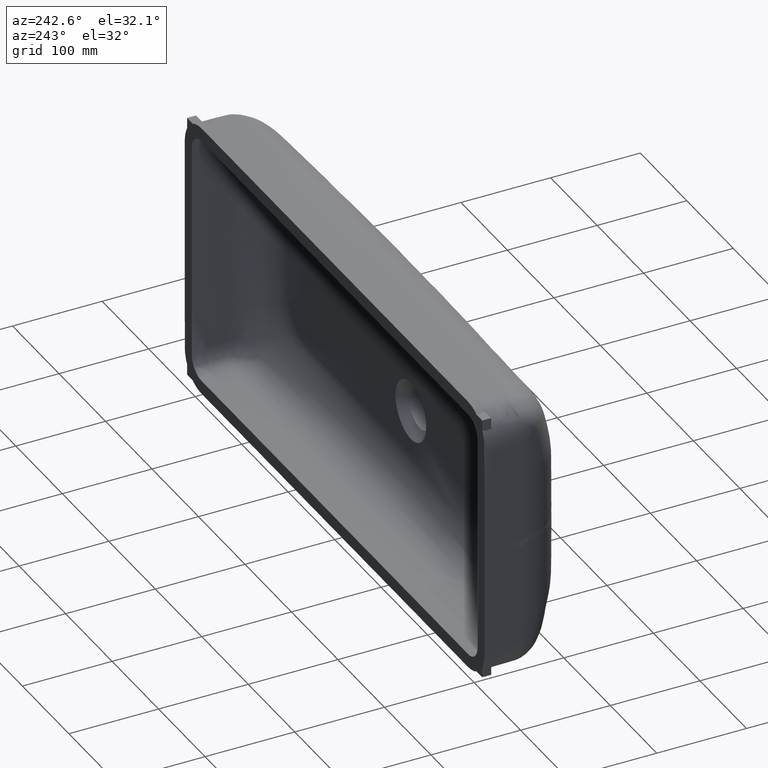
[diagram: clean part render]
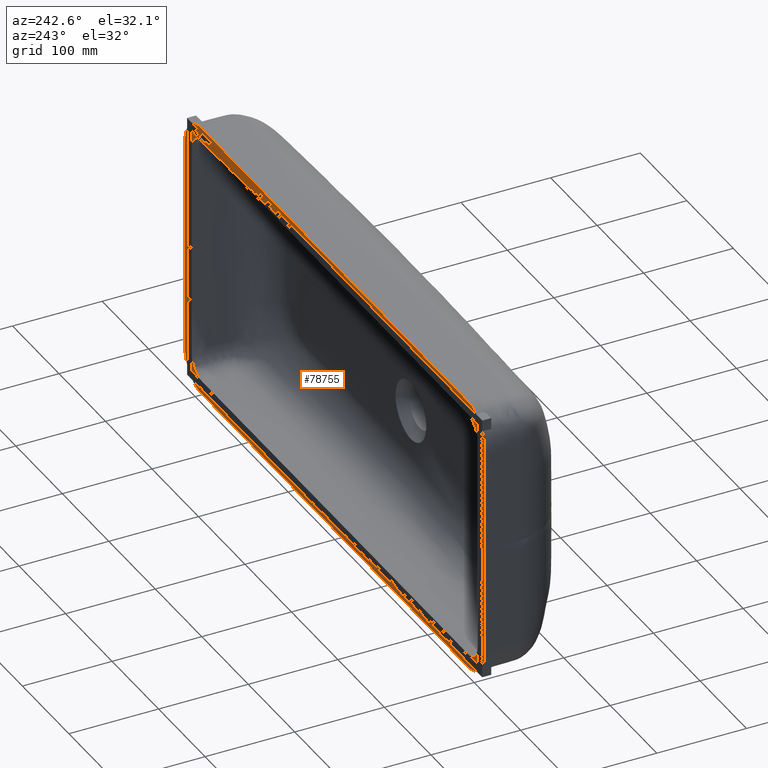
[diagram: same view with one face highlighted and labeled with its STEP entity id]
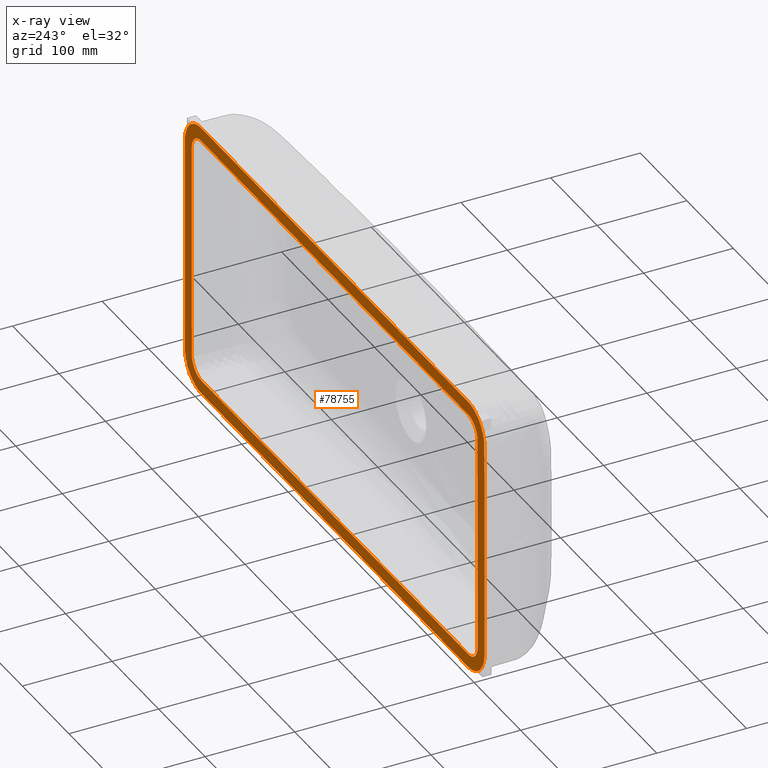
[diagram: x-ray of the same camera — body ghosted, the highlighted face saturated]
A machine part, auxiliary view. The second image highlights one B-rep face of the part: STEP entity #78755.
The next image is the same camera in x-ray: the body ghosted, the highlighted face saturated — about 0% of this face is hidden behind the body in this view.
In plain terms, the highlighted planar face has unit normal (0, 1, -0).
Its self-contained STEP definition (entity closure, byte-faithful):
#1538 = CARTESIAN_POINT ( 'NONE',  ( -322.5091960071179100, -3.409203776552731800E-013, -121.0281627364059200 ) ) ;
#2301 = CARTESIAN_POINT ( 'NONE',  ( -314.2696964731727600, 2.231971605445429100E-013, -142.5740307254259800 ) ) ;
#3060 = CARTESIAN_POINT ( 'NONE',  ( -292.0228288718980700, 4.789489002066422600E-014, -154.7163876846789500 ) ) ;
#3818 = CARTESIAN_POINT ( 'NONE',  ( -153.5004031492442500, -2.202894599875263300E-014, -155.0067545041486300 ) ) ;
#4575 = CARTESIAN_POINT ( 'NONE',  ( 286.6684892410783000, 1.556841785765189300E-013, -155.0012643278636500 ) ) ;
#5337 = CARTESIAN_POINT ( 'NONE',  ( 308.7587092037516600, 2.276577377812510700E-013, -147.8221930468014900 ) ) ;
#6094 = CARTESIAN_POINT ( 'NONE',  ( 321.2397113850350400, -1.958987989733089300E-013, -129.4149088517008900 ) ) ;
#6854 = CARTESIAN_POINT ( 'NONE',  ( 322.5187463859667200, 4.419576330240098000E-013, -77.43224396367611500 ) ) ;
#8374 = CARTESIAN_POINT ( 'NONE',  ( 320.5191722098404600, 8.396026179031676400E-014, 131.7379910105558500 ) ) ;
#9118 = CARTESIAN_POINT ( 'NONE',  ( 309.4871919114694900, 2.249055878741077600E-013, 147.2695408648443200 ) ) ;
#9385 = CARTESIAN_POINT ( 'NONE',  ( -307.5000000000000000, 0.0000000000000000000, -106.1358856637156700 ) ) ;
#9881 = CARTESIAN_POINT ( 'NONE',  ( 287.7682587020204900, 7.261101029649298000E-014, 155.0054457408384400 ) ) ;
#10151 = CARTESIAN_POINT ( 'NONE',  ( 290.4682706410208100, 0.0000000000000000000, -139.8337611195951800 ) ) ;
#10638 = CARTESIAN_POINT ( 'NONE',  ( -78.29070187609428900, -1.256383549244291800E-013, 155.0137057078182500 ) ) ;
#11405 = CARTESIAN_POINT ( 'NONE',  ( -289.9654413472586600, 8.750581991243745500E-014, 154.9209087731526900 ) ) ;
#11672 = CARTESIAN_POINT ( 'NONE',  ( 322.5186414504132100, -6.505213034913055200E-016, 1.201936346521925100E-013 ) ) ;
#12166 = CARTESIAN_POINT ( 'NONE',  ( -313.5723244114672600, 1.184679633220841300E-013, 143.3974179283978000 ) ) ;
#12928 = CARTESIAN_POINT ( 'NONE',  ( -322.4219314735395900, 2.818785201908571000E-013, 122.8788700430679900 ) ) ;
#15244 = ORIENTED_EDGE ( 'NONE', *, *, #38508, .T. ) ;
#17275 = CARTESIAN_POINT ( 'NONE',  ( 0.0000000000000000000, 0.0000000000000000000, 0.0000000000000000000 ) ) ;
#19317 = CARTESIAN_POINT ( 'NONE',  ( -322.4095592902771200, -3.115154133610045900E-013, -122.8453931305593700 ) ) ;
#20076 = CARTESIAN_POINT ( 'NONE',  ( -311.8390782156498100, 1.580536533954778900E-013, -145.2812469567373900 ) ) ;
#20585 = EDGE_LOOP ( 'NONE', ( #111275, #59402 ) ) ;
#20764 = FACE_OUTER_BOUND ( 'NONE', #20585, .T. ) ;
#20837 = CARTESIAN_POINT ( 'NONE',  ( -289.0290378285064300, -2.083216906065723400E-013, -154.9889351421387300 ) ) ;
#21595 = CARTESIAN_POINT ( 'NONE',  ( -38.36085696195139900, 5.740112850203091500E-013, -155.0186429556822800 ) ) ;
#22356 = CARTESIAN_POINT ( 'NONE',  ( 287.5681074468723200, 2.811529081541229000E-013, -155.0024666569818000 ) ) ;
#23123 = CARTESIAN_POINT ( 'NONE',  ( 310.1981383955924800, 1.205690667287589100E-013, -146.6610741707001800 ) ) ;
#23159 = CARTESIAN_POINT ( 'NONE',  ( -307.5000000000000000, 0.0000000000000000000, -7.589415207398531000E-014 ) ) ;
#23368 = CARTESIAN_POINT ( 'NONE',  ( -307.5000000000000000, 0.0000000000000000000, 3.920382849557266800 ) ) ;
#23610 = CARTESIAN_POINT ( 'NONE',  ( -307.5000000000000000, 0.0000000000000000000, 9.147559982300387900 ) ) ;
#23637 = CARTESIAN_POINT ( 'NONE',  ( -307.5000000000000000, 0.0000000000000000000, 35.28344564601605500 ) ) ;
#23878 = CARTESIAN_POINT ( 'NONE',  ( 321.6892572803942600, -1.859948725447090400E-014, -127.6208606907753300 ) ) ;
#24125 = CARTESIAN_POINT ( 'NONE',  ( -307.5000000000000000, 0.0000000000000000000, 57.49894846017436800 ) ) ;
#24370 = CARTESIAN_POINT ( 'NONE',  ( -307.5000000000000000, 0.0000000000000000000, 92.27177132743125300 ) ) ;
#24640 = CARTESIAN_POINT ( 'NONE',  ( 322.5186712731971900, -2.381232789493003500E-013, -33.87660673412686700 ) ) ;
#24678 = CARTESIAN_POINT ( 'NONE',  ( -307.4999999999999400, 0.0000000000000000000, 106.1358856637155700 ) ) ;
#25164 = CARTESIAN_POINT ( 'NONE',  ( -307.5000000000000600, 0.0000000000000000000, 121.2131417307904300 ) ) ;
#25443 = CARTESIAN_POINT ( 'NONE',  ( -307.3917546935302900, 0.0000000000000000000, 122.4012009157070200 ) ) ;
#26166 = CARTESIAN_POINT ( 'NONE',  ( 319.3693668984720400, 6.151480753034367100E-014, 134.5322540670361200 ) ) ;
#26198 = CARTESIAN_POINT ( 'NONE',  ( -306.0631782548153400, 0.0000000000000000000, 129.7942784449086800 ) ) ;
#26675 = CARTESIAN_POINT ( 'NONE',  ( -302.0441262972485100, 0.0000000000000000000, 135.0328629550516300 ) ) ;
#26915 = CARTESIAN_POINT ( 'NONE',  ( 306.5768500133155500, -9.430548335644277700E-014, 149.3797265762164800 ) ) ;
#26947 = CARTESIAN_POINT ( 'NONE',  ( -295.1027707429660200, 0.0000000000000000000, 138.5757673255014900 ) ) ;
#27179 = CARTESIAN_POINT ( 'NONE',  ( -307.3917546935302300, 0.0000000000000000000, -122.4012009157070700 ) ) ;
#27403 = CARTESIAN_POINT ( 'NONE',  ( -191.6666666666655200, 0.0000000000000000000, 139.9999999999990600 ) ) ;
#27428 = CARTESIAN_POINT ( 'NONE',  ( 3.858025010572419000E-012, 0.0000000000000000000, 139.9999999999998600 ) ) ;
#27667 = CARTESIAN_POINT ( 'NONE',  ( 285.9590440262273300, 2.475416827726167100E-014, 155.0012787429855300 ) ) ;
#27929 = CARTESIAN_POINT ( 'NONE',  ( 295.1027707429659000, 0.0000000000000000000, -138.5757673255015400 ) ) ;
#28175 = CARTESIAN_POINT ( 'NONE',  ( 191.6666666666693300, 0.0000000000000000000, 140.0000000000008000 ) ) ;
#28416 = CARTESIAN_POINT ( 'NONE',  ( -194.0786993927939600, -1.421451099677312400E-013, 155.0041791539987900 ) ) ;
#28937 = CARTESIAN_POINT ( 'NONE',  ( 289.0033957137771900, 0.0000000000000000000, 140.0000000000000000 ) ) ;
#29194 = CARTESIAN_POINT ( 'NONE',  ( -295.2968185187680200, 1.943791548828391200E-013, 154.2119771163742100 ) ) ;
#29227 = CARTESIAN_POINT ( 'NONE',  ( 290.4682706410208700, 0.0000000000000000000, 139.8337611195951200 ) ) ;
#29688 = CARTESIAN_POINT ( 'NONE',  ( 293.5283965657413900, 0.0000000000000000000, 139.1494311185424500 ) ) ;
#29714 = CARTESIAN_POINT ( 'NONE',  ( 295.1027707429668700, 0.0000000000000000000, 138.5757673255011500 ) ) ;
#29956 = CARTESIAN_POINT ( 'NONE',  ( -315.8216414632565800, 1.062912056943268300E-013, 140.6225886400017400 ) ) ;
#29957 = CARTESIAN_POINT ( 'NONE',  ( 302.0441262972489700, 0.0000000000000000000, 135.0328629550509400 ) ) ;
#29989 = CARTESIAN_POINT ( 'NONE',  ( 306.0631782548158000, 0.0000000000000000000, 129.7942784449080900 ) ) ;
#30476 = CARTESIAN_POINT ( 'NONE',  ( 307.3917546935301700, 0.0000000000000000000, 122.4012009157068100 ) ) ;
#30719 = CARTESIAN_POINT ( 'NONE',  ( -322.5187065817177100, 5.066114926278885100E-014, 120.4938850476042400 ) ) ;
#30720 = CARTESIAN_POINT ( 'NONE',  ( 307.4999999999998900, 0.0000000000000000000, 121.2131417307903400 ) ) ;
#30751 = CARTESIAN_POINT ( 'NONE',  ( 307.4999999999998300, 0.0000000000000000000, 106.1358856637153100 ) ) ;
#31236 = CARTESIAN_POINT ( 'NONE',  ( 307.4999999999998300, 0.0000000000000000000, 92.27177132743064200 ) ) ;
#31513 = CARTESIAN_POINT ( 'NONE',  ( 307.5000000000003400, 0.0000000000000000000, 1.224699823917574900E-013 ) ) ;
#32285 = CARTESIAN_POINT ( 'NONE',  ( 307.5000000000003400, 0.0000000000000000000, 26.13588566371539600 ) ) ;
#32766 = CARTESIAN_POINT ( 'NONE',  ( 307.5000000000002300, 0.0000000000000000000, 52.27177132743068500 ) ) ;
#35074 = DIRECTION ( 'NONE',  ( -1.000000000000000000, 0.0000000000000000000, -2.468102506471067100E-016 ) ) ;
#37094 = CARTESIAN_POINT ( 'NONE',  ( -322.0100615758762500, -5.477821039880404000E-013, -126.4370708981556200 ) ) ;
#37854 = CARTESIAN_POINT ( 'NONE',  ( -307.1358574735813800, -1.031157695337881600E-013, -149.0088905659640900 ) ) ;
#38508 = EDGE_CURVE ( 'NONE', #150046, #54996, #191117, .T. ) ;
#38622 = CARTESIAN_POINT ( 'NONE',  ( -287.2301910800298400, -2.223339612962976500E-014, -155.0012529732052800 ) ) ;
#39379 = CARTESIAN_POINT ( 'NONE',  ( 76.77868927972626500, -2.314978297751284700E-013, -155.0138693792222600 ) ) ;
#40139 = CARTESIAN_POINT ( 'NONE',  ( 292.6437793970428600, 1.373779251228249200E-013, -154.7096282094102300 ) ) ;
#40898 = CARTESIAN_POINT ( 'NONE',  ( 312.0162770689471500, -2.224453645859774800E-014, -145.0226878069372000 ) ) ;
#41647 = CARTESIAN_POINT ( 'NONE',  ( 322.2377036519894800, 4.995189545244586100E-013, -124.6102825755086100 ) ) ;
#42408 = CARTESIAN_POINT ( 'NONE',  ( 322.5186436211129700, -1.222451391520327600E-013, -8.469151683537735000 ) ) ;
#43179 = CARTESIAN_POINT ( 'NONE',  ( 322.5188214729575400, 1.127124910951044400E-014, 77.51929009655353300 ) ) ;
#43926 = CARTESIAN_POINT ( 'NONE',  ( 318.5712884306667000, -4.637391347083505600E-013, 136.1649195548577000 ) ) ;
#44671 = CARTESIAN_POINT ( 'NONE',  ( 304.5046016106694000, 6.066525386048866600E-014, 150.6085938559005500 ) ) ;
#44935 = CARTESIAN_POINT ( 'NONE',  ( -302.0441262972486200, 0.0000000000000000000, -135.0328629550515100 ) ) ;
#45427 = CARTESIAN_POINT ( 'NONE',  ( 279.9284186655829100, -2.799540647917016200E-013, 155.0014052314761600 ) ) ;
#45696 = CARTESIAN_POINT ( 'NONE',  ( 306.0631782548155700, 0.0000000000000000000, -129.7942784449086000 ) ) ;
#46190 = CARTESIAN_POINT ( 'NONE',  ( -256.7971982271550900, -1.294599678359599900E-013, 155.0019613967033100 ) ) ;
#46955 = CARTESIAN_POINT ( 'NONE',  ( -299.8578230493944300, 1.865467391184586000E-013, 152.7785390722364700 ) ) ;
#47715 = CARTESIAN_POINT ( 'NONE',  ( -317.7860432971824000, -8.590098525569138800E-014, 137.6193321030520500 ) ) ;
#48479 = CARTESIAN_POINT ( 'NONE',  ( -322.5187157708430200, 2.868367183448064200E-014, 117.5113632463928500 ) ) ;
#54872 = CARTESIAN_POINT ( 'NONE',  ( -320.3440626476368600, 2.488153312474531000E-013, -132.2196838470491400 ) ) ;
#54996 = VERTEX_POINT ( 'NONE', #83894 ) ;
#55634 = CARTESIAN_POINT ( 'NONE',  ( -304.0191292481290500, -2.374547176280914700E-013, -150.8914360587024200 ) ) ;
#56305 = ORIENTED_EDGE ( 'NONE', *, *, #84798, .T. ) ;
#56399 = CARTESIAN_POINT ( 'NONE',  ( -285.7309780329598500, -9.456323799715434600E-014, -155.0012833811360300 ) ) ;
#57157 = CARTESIAN_POINT ( 'NONE',  ( 191.9182356812613400, 1.383232997886499500E-013, -155.0042940648141300 ) ) ;
#57923 = CARTESIAN_POINT ( 'NONE',  ( 297.3602557886147200, -7.214109980649844000E-014, -153.6143793714765000 ) ) ;
#58684 = CARTESIAN_POINT ( 'NONE',  ( 314.4905171649566600, -1.398384681348519600E-013, -142.3348452800290700 ) ) ;
#59402 = ORIENTED_EDGE ( 'NONE', *, *, #129474, .F. ) ;
#59435 = CARTESIAN_POINT ( 'NONE',  ( 322.4559674398631200, -3.509052405244298000E-014, -122.1961438190903500 ) ) ;
#60191 = CARTESIAN_POINT ( 'NONE',  ( 322.5186415909491300, -1.900714312586599300E-016, -2.117287920884809000 ) ) ;
#60957 = CARTESIAN_POINT ( 'NONE',  ( 322.5187122485422700, -8.637205042053988000E-014, 118.7014122891575700 ) ) ;
#61711 = CARTESIAN_POINT ( 'NONE',  ( 316.8074830924877000, 2.068240287536059200E-014, 139.3122596838200900 ) ) ;
#62457 = CARTESIAN_POINT ( 'NONE',  ( 302.8910780895412800, -9.982397504017594900E-014, 151.4511465504165500 ) ) ;
#62724 = CARTESIAN_POINT ( 'NONE',  ( -293.5283965657408200, 0.0000000000000000000, -139.1494311185426200 ) ) ;
#63211 = CARTESIAN_POINT ( 'NONE',  ( 254.5997926747789400, -6.165581241999364900E-013, 155.0020239962755100 ) ) ;
#63477 = CARTESIAN_POINT ( 'NONE',  ( 307.4999999999998900, 0.0000000000000000000, -121.2131417307903100 ) ) ;
#63967 = CARTESIAN_POINT ( 'NONE',  ( -282.1258230115300900, 7.899139604826709300E-014, 155.0013576944790800 ) ) ;
#64747 = CARTESIAN_POINT ( 'NONE',  ( -303.1657944110866100, -3.141378040146831300E-014, 151.3320671438696600 ) ) ;
#65512 = CARTESIAN_POINT ( 'NONE',  ( -319.9726119441522800, 1.873321437802695900E-014, 133.3357757288933700 ) ) ;
#65788 = CARTESIAN_POINT ( 'NONE',  ( -322.5186414504128700, -1.847900755251787900E-031, -7.703124338932417300E-014 ) ) ;
#66280 = CARTESIAN_POINT ( 'NONE',  ( -322.5186414504129300, 5.653308937070333600E-015, 38.17628064861842300 ) ) ;
#68231 = VERTEX_POINT ( 'NONE', #207410 ) ;
#71884 = CARTESIAN_POINT ( 'NONE',  ( -322.5187159907689000, -1.673529238475701900E-014, -117.3790812232441300 ) ) ;
#72651 = CARTESIAN_POINT ( 'NONE',  ( -318.8987192348777700, 5.575751615954136500E-013, -135.5560656390123000 ) ) ;
#73408 = CARTESIAN_POINT ( 'NONE',  ( -299.6552187265913300, 1.195026271989272300E-013, -152.9200917952148300 ) ) ;
#74169 = CARTESIAN_POINT ( 'NONE',  ( -279.4342833204295900, -5.176866964600916800E-013, -155.0014161009780500 ) ) ;
#74929 = CARTESIAN_POINT ( 'NONE',  ( 254.2854901564570600, 1.264309805820317000E-013, -155.0020333415717500 ) ) ;
#75690 = CARTESIAN_POINT ( 'NONE',  ( 299.6964383317487700, -9.249133937940357100E-014, -152.8223908136164100 ) ) ;
#76448 = CARTESIAN_POINT ( 'NONE',  ( 316.6825552661983400, -3.841398085332207500E-013, -139.3901295726442100 ) ) ;
#77211 = CARTESIAN_POINT ( 'NONE',  ( 322.5064019288526500, -2.015031060571014300E-014, -120.9875633656492100 ) ) ;
#77962 = CARTESIAN_POINT ( 'NONE',  ( 322.5186414592731700, 7.588059114555839400E-013, -0.5293219802215056700 ) ) ;
#78732 = CARTESIAN_POINT ( 'NONE',  ( 322.5062794887360800, -5.519053521720313200E-014, 121.1238148498856900 ) ) ;
#78755 = ADVANCED_FACE ( 'NONE', ( #20764, #145573 ), #123094, .T. ) ;
#79486 = CARTESIAN_POINT ( 'NONE',  ( 313.4274572443679300, 4.246818703327188000E-014, 143.5351282473976900 ) ) ;
#80240 = CARTESIAN_POINT ( 'NONE',  ( 297.8877581683867700, 4.626647899924952200E-013, 153.5190644139875900 ) ) ;
#80504 = CARTESIAN_POINT ( 'NONE',  ( -289.0033957137770800, 0.0000000000000000000, -140.0000000000000000 ) ) ;
#80990 = CARTESIAN_POINT ( 'NONE',  ( 191.8812935079516300, 2.105442083431198600E-014, 155.0042928010307400 ) ) ;
#81262 = CARTESIAN_POINT ( 'NONE',  ( 307.4999999999998300, 0.0000000000000000000, -92.27177132743166500 ) ) ;
#81748 = CARTESIAN_POINT ( 'NONE',  ( -287.2518542329514200, -2.667200353405818200E-013, 155.0012525366550400 ) ) ;
#82512 = CARTESIAN_POINT ( 'NONE',  ( -308.2776583391271300, 7.724149921454777700E-015, 148.2787994527272100 ) ) ;
#83271 = CARTESIAN_POINT ( 'NONE',  ( -321.5517655162036600, -1.272517938119700500E-013, 128.2129145409735100 ) ) ;
#83894 = CARTESIAN_POINT ( 'NONE',  ( -307.5000000000000000, 0.0000000000000000000, -7.589415207398531000E-014 ) ) ;
#84798 = EDGE_CURVE ( 'NONE', #54996, #150046, #209884, .T. ) ;
#88201 = B_SPLINE_CURVE_WITH_KNOTS ( 'NONE', 3,
 ( #131214, #149003, #43179, #166755, #60957, #184489, #78732, #202239, #96479, #220012, #114216, #8374, #131971, #26166, #149757, #43926, #167509, #61711, #185236, #79486, #202997, #97227, #220759, #114970, #9118, #132726, #26915, #150513, #44671, #168251, #62457, #185985, #80240, #203744, #97977, #221509, #115722, #9881, #133486, #27667, #151273, #45427, #169007, #63211, #186752, #80990, #204495, #98730, #222265, #116474, #10638, #134242, #28416, #152024, #46190, #169765, #63967, #187512, #81748, #205258, #99494, #223025, #117239, #11405, #135006, #29194, #152787, #46955, #170533, #64747, #188278, #82512, #206028, #100260, #223784, #117998, #12166, #135767, #29956, #153546, #47715, #171294, #65512, #189044, #83271, #206789, #101024, #224553, #118758, #12928, #136527, #30719, #154306, #48479, #172059, #66280, #189808 ),
 .UNSPECIFIED., .F., .F.,
 ( 4, 2, 2, 2, 2, 2, 2, 2, 2, 2, 2, 2, 2, 2, 2, 2, 2, 2, 2, 2, 1, 1, 1, 1, 2, 2, 2, 2, 2, 1, 1, 1, 2, 2, 2, 2, 2, 2, 2, 2, 2, 2, 2, 2, 2, 2, 2, 2, 2, 2, 1, 1, 4 ),
 ( 1.970609267497940400E-016, 0.1162789346041302000, 0.1199126513105092400, 0.1217295096636987600, 0.1235463680168882900, 0.1308138014296464100, 0.1344475181360254800, 0.1362643764892149900, 0.1380812348424045000, 0.1453486682551624100, 0.1471655266083519200, 0.1489823849615414300, 0.1526161016679204500, 0.1562498183742994400, 0.1580666767274889800, 0.1598835350806785100, 0.1671509684934361900, 0.1707846851998150700, 0.1744184019061939800, 0.1762352602593835200, 0.1780521186125730600, 0.1816858353189521300, 0.1889532687317103100, 0.2034881355572266400, 0.2325578692082592200, 0.3488368038123896300, 0.4651157384165199300, 0.5813946730206502900, 0.6976736076247805900, 0.7267433412758131900, 0.7412782081013294900, 0.7485456415140876500, 0.7521793582204666700, 0.7530877873970613900, 0.7539962165736560100, 0.7558130749268452400, 0.7630805083396020600, 0.7667142250459805200, 0.7703479417523589900, 0.7776153751651157000, 0.7794322335183048200, 0.7812490918714939400, 0.7848828085778721800, 0.7885165252842504200, 0.7921502419906286700, 0.7994176754033850400, 0.8012345337565741600, 0.8030513921097631700, 0.8066851088161414200, 0.8085019671693305400, 0.8103188255225195500, 0.8139525422288979000, 0.9302314768329997800 ),
 .UNSPECIFIED. ) ;
#89664 = CARTESIAN_POINT ( 'NONE',  ( -322.5187106303633300, -7.031951410015641700E-013, -119.2036265239094100 ) ) ;
#90426 = CARTESIAN_POINT ( 'NONE',  ( -316.4742127550035800, -9.642979181181747000E-014, -139.6981231447243200 ) ) ;
#91183 = CARTESIAN_POINT ( 'NONE',  ( -294.4161275222097600, -2.193774642906482900E-013, -154.3221941066232100 ) ) ;
#91941 = CARTESIAN_POINT ( 'NONE',  ( -254.2475062391129100, 6.821591329084944000E-013, -155.0020344406887300 ) ) ;
#92693 = CARTESIAN_POINT ( 'NONE',  ( 279.4722662200153400, -2.439798580663437300E-013, -155.0014152643693100 ) ) ;
#93450 = CARTESIAN_POINT ( 'NONE',  ( 301.4022337873392400, -2.090808812053556700E-014, -152.1372073127277800 ) ) ;
#94200 = CARTESIAN_POINT ( 'NONE',  ( 319.1697085865762300, -1.844433489080735100E-014, -135.1488994696952700 ) ) ;
#94960 = CARTESIAN_POINT ( 'NONE',  ( 322.5187078923418700, -1.745085826467143900E-014, -120.0804710545545200 ) ) ;
#95713 = CARTESIAN_POINT ( 'NONE',  ( 322.5186414510479300, -2.398525415953373200E-013, -0.1512348514917121700 ) ) ;
#96479 = CARTESIAN_POINT ( 'NONE',  ( 322.4017095478421300, 1.804931629987060000E-013, 122.9412148971953500 ) ) ;
#97227 = CARTESIAN_POINT ( 'NONE',  ( 312.1682887675985400, -2.414630035907802100E-014, 144.8504029883481200 ) ) ;
#97491 = CARTESIAN_POINT ( 'NONE',  ( -307.5000000000000000, 0.0000000000000000000, -35.28344564601615500 ) ) ;
#97977 = CARTESIAN_POINT ( 'NONE',  ( 293.1929616893078800, 7.472993807891055400E-015, 154.5610569452343300 ) ) ;
#98245 = CARTESIAN_POINT ( 'NONE',  ( 1.734723475976807100E-013, 0.0000000000000000000, -140.0000000000005700 ) ) ;
#98358 = AXIS2_PLACEMENT_3D ( 'NONE', #17275, #140895, #35074 ) ;
#98730 = CARTESIAN_POINT ( 'NONE',  ( 76.09329523417415000, -5.603258570730034000E-014, 155.0139393000349600 ) ) ;
#98859 = VERTEX_POINT ( 'NONE', #11672 ) ;
#99003 = CARTESIAN_POINT ( 'NONE',  ( 307.5000000000003400, 0.0000000000000000000, -26.13588566371579700 ) ) ;
#99494 = CARTESIAN_POINT ( 'NONE',  ( -288.1564435022248200, -2.649344140874539300E-015, 154.9966153869066500 ) ) ;
#100260 = CARTESIAN_POINT ( 'NONE',  ( -311.0256324917566500, 2.613496213328272100E-013, 145.9338305980618600 ) ) ;
#101024 = CARTESIAN_POINT ( 'NONE',  ( -321.9281134838707900, -4.120557594933502800E-013, 126.4526378170456300 ) ) ;
#107400 = CARTESIAN_POINT ( 'NONE',  ( -322.5198494033758700, -3.407891721016249500E-013, -120.1159002651476400 ) ) ;
#108165 = CARTESIAN_POINT ( 'NONE',  ( -315.0360684606683300, 2.233323268621486200E-013, -141.6342293564972600 ) ) ;
#108926 = CARTESIAN_POINT ( 'NONE',  ( -292.6211103187631600, 1.719745188403018300E-014, -154.6338501882618200 ) ) ;
#109682 = CARTESIAN_POINT ( 'NONE',  ( -191.8802519456965000, -4.601817456627010900E-014, -155.0042960506246200 ) ) ;
#110432 = CARTESIAN_POINT ( 'NONE',  ( 285.7689613205685100, 1.781431712728668400E-014, -155.0012826025807400 ) ) ;
#110701 = CARTESIAN_POINT ( 'NONE',  ( -307.5000000000000000, 0.0000000000000000000, -3.920382849557419100 ) ) ;
#111189 = CARTESIAN_POINT ( 'NONE',  ( 306.2838808683981700, 2.273955113819387900E-013, -149.6454337284223500 ) ) ;
#111275 = ORIENTED_EDGE ( 'NONE', *, *, #126452, .F. ) ;
#111947 = CARTESIAN_POINT ( 'NONE',  ( 321.0696868575298600, -1.866045823176402900E-014, -130.0039611027133600 ) ) ;
#112710 = CARTESIAN_POINT ( 'NONE',  ( 322.5187716403850700, 2.411560801580892400E-013, -98.00018436399632500 ) ) ;
#113221 = CARTESIAN_POINT ( 'NONE',  ( -289.0033957137771400, 0.0000000000000000000, 140.0000000000000000 ) ) ;
#113460 = CARTESIAN_POINT ( 'NONE',  ( 322.5186414504132100, -6.505213034913055200E-016, 1.201936346521925100E-013 ) ) ;
#114216 = CARTESIAN_POINT ( 'NONE',  ( 321.6083883778739500, 8.346696121050155700E-014, 128.3081087113542700 ) ) ;
#114970 = CARTESIAN_POINT ( 'NONE',  ( 310.4086938744631000, 2.151702266132186200E-014, 146.5006315234104500 ) ) ;
#115235 = CARTESIAN_POINT ( 'NONE',  ( -307.5000000000000000, 0.0000000000000000000, -92.27177132743131000 ) ) ;
#115722 = CARTESIAN_POINT ( 'NONE',  ( 289.5771627143126400, 7.260466843475697800E-014, 154.9613512471312900 ) ) ;
#115986 = CARTESIAN_POINT ( 'NONE',  ( 289.0033957137771400, 0.0000000000000000000, -140.0000000000000300 ) ) ;
#116474 = CARTESIAN_POINT ( 'NONE',  ( -39.69470276815604800, 3.150886938287916600E-013, 155.0185528030349400 ) ) ;
#117239 = CARTESIAN_POINT ( 'NONE',  ( -289.3625309092431600, 8.451933257432579900E-014, 154.9578042507090700 ) ) ;
#117998 = CARTESIAN_POINT ( 'NONE',  ( -312.3290384097568300, 1.186538284646660300E-013, 144.6897244625177400 ) ) ;
#118758 = CARTESIAN_POINT ( 'NONE',  ( -322.3044657293706900, -2.336089986727226000E-013, 124.0706255239532700 ) ) ;
#123094 = PLANE ( 'NONE',  #98358 ) ;
#123102 = B_SPLINE_CURVE_WITH_KNOTS ( 'NONE', 3,
 ( #65788, #207063, #177660, #71884, #195409, #89664, #213172, #107400, #1538, #125141, #19317, #142926, #37094, #160685, #54872, #178426, #72651, #196169, #90426, #213937, #108165, #2301, #125911, #20076, #143683, #37854, #161452, #55634, #179187, #73408, #196926, #91183, #214697, #108926, #3060, #126679, #20837, #144445, #38622, #162222, #56399, #179939, #74169, #197684, #91941, #215462, #109682, #3818, #127432, #21595, #145211, #39379, #162970, #57157, #180692, #74929, #198443, #92693, #216216, #110432, #4575, #128183, #22356, #145969, #40139, #163727, #57923, #181459, #75690, #199205, #93450, #216976, #111189, #5337, #128947, #23123, #146726, #40898, #164482, #58684, #182219, #76448, #199967, #94200, #217737, #111947, #6094, #129695, #23878, #147475, #41647, #165233, #59435, #182973, #77211, #200725, #94960, #218497, #112710, #6854, #130455, #24640, #148237, #42408, #165990, #60191, #183728, #77962, #201478, #95713, #219247, #113460 ),
 .UNSPECIFIED., .F., .F.,
 ( 4, 2, 1, 2, 2, 2, 2, 2, 2, 1, 2, 2, 2, 2, 2, 2, 2, 2, 2, 2, 2, 1, 1, 1, 1, 1, 2, 2, 2, 2, 2, 1, 1, 1, 1, 1, 2, 2, 2, 2, 2, 2, 2, 2, 2, 2, 2, 2, 2, 2, 2, 2, 2, 2, 2, 1, 2, 1, 1, 1, 1, 1, 1, 1, 2, 4 ),
 ( 0.9302314768329997800, 1.048786729398740700, 1.050639155220080200, 1.051565368130750200, 1.052491581041419900, 1.054344006862759600, 1.056196432684099100, 1.063606135969457500, 1.067310987612136700, 1.071015839254815900, 1.074720690897494900, 1.076573116718834600, 1.078425542540174300, 1.085835245825532700, 1.089540097468211700, 1.093244949110890900, 1.100654652396249000, 1.102507078217588500, 1.104359504038928200, 1.108064355681607400, 1.108990568592277200, 1.109916781502946900, 1.111769207324286400, 1.115474058966965600, 1.122883762252324200, 1.137703168823041200, 1.167341981964475500, 1.285897234530211800, 1.404452487095948100, 1.523007739661684300, 1.641562992227420600, 1.671201805368854900, 1.686021211939571900, 1.693430915224930300, 1.697135766867609700, 1.698988192688949200, 1.699914405599618900, 1.700840618510288700, 1.708250321795647100, 1.711955173438326500, 1.713807599259666000, 1.715660025081005500, 1.723069728366363200, 1.724922154187702700, 1.726774580009042400, 1.730479431651721400, 1.734184283294400100, 1.737889134937079300, 1.745298838222436800, 1.747151264043776300, 1.749003689865115800, 1.752708541507795000, 1.754560967329134500, 1.755487180239804200, 1.756413393150474000, 1.760118244793152900, 1.819395871076016300, 1.849034684217448100, 1.863854090788164000, 1.871263794073521900, 1.874968645716200900, 1.876821071537540400, 1.877747284448210200, 1.878210390903545000, 1.878441944131212300, 1.878673497358879900 ),
 .UNSPECIFIED. ) ;
#125141 = CARTESIAN_POINT ( 'NONE',  ( -322.4863120896572500, -3.113415721565892800E-013, -121.6366881456205800 ) ) ;
#125911 = CARTESIAN_POINT ( 'NONE',  ( -313.8722137554924500, 1.583765145126585500E-013, -143.0364175844827300 ) ) ;
#126452 = EDGE_CURVE ( 'NONE', #68231, #98859, #123102, .T. ) ;
#126679 = CARTESIAN_POINT ( 'NONE',  ( -290.2271893637075100, 4.786600060562231500E-014, -154.9172536421473300 ) ) ;
#127432 = CARTESIAN_POINT ( 'NONE',  ( -76.74070568631975700, -2.202996987129987200E-014, -155.0138734139299900 ) ) ;
#128183 = CARTESIAN_POINT ( 'NONE',  ( 287.2681745261032200, 1.556841803196409600E-013, -155.0012522080545500 ) ) ;
#128947 = CARTESIAN_POINT ( 'NONE',  ( 309.2471583669381500, 1.204567335643216800E-013, -147.4421183212363900 ) ) ;
#129474 = EDGE_CURVE ( 'NONE', #98859, #68231, #88201, .T. ) ;
#129695 = CARTESIAN_POINT ( 'NONE',  ( 321.5494239445437800, -1.957275117921577300E-013, -128.2239618008683800 ) ) ;
#130455 = CARTESIAN_POINT ( 'NONE',  ( 322.5186987879371800, 4.461338737275750400E-013, -48.39515247730715000 ) ) ;
#131214 = CARTESIAN_POINT ( 'NONE',  ( 322.5186414504132100, -6.505213034913055200E-016, 1.201936346521925100E-013 ) ) ;
#131971 = CARTESIAN_POINT ( 'NONE',  ( 320.0962521719735600, 6.127508377537691200E-014, 132.8654726005204600 ) ) ;
#132726 = CARTESIAN_POINT ( 'NONE',  ( 307.5712706783168100, 2.251126299913457900E-013, 148.7090893311576300 ) ) ;
#132994 = CARTESIAN_POINT ( 'NONE',  ( -307.5000000000000000, 0.0000000000000000000, -121.2131417307904800 ) ) ;
#133486 = CARTESIAN_POINT ( 'NONE',  ( 287.1651691035463600, 2.475416475480246000E-014, 155.0012542515880500 ) ) ;
#133752 = CARTESIAN_POINT ( 'NONE',  ( 293.5283965657408800, 0.0000000000000000000, -139.1494311185426200 ) ) ;
#134242 = CARTESIAN_POINT ( 'NONE',  ( -155.4827001863780300, -1.256393775125580600E-013, 155.0065957284860800 ) ) ;
#135006 = CARTESIAN_POINT ( 'NONE',  ( -292.9572707100746200, 8.746839827114366400E-014, 154.6607188801493500 ) ) ;
#135767 = CARTESIAN_POINT ( 'NONE',  ( -314.3535252985327000, 1.065608883721311500E-013, 142.4976722722815100 ) ) ;
#136527 = CARTESIAN_POINT ( 'NONE',  ( -322.5071654942988200, 2.816212754254359400E-013, 121.0902662919789800 ) ) ;
#140895 = DIRECTION ( 'NONE',  ( 3.549732297720402200E-032, 1.000000000000000000, -1.438243463718963100E-016 ) ) ;
#142926 = CARTESIAN_POINT ( 'NONE',  ( -322.3557042852567600, -5.473520008908271000E-013, -123.4465960024697300 ) ) ;
#143683 = CARTESIAN_POINT ( 'NONE',  ( -310.0520904341582300, -1.028103197471710500E-013, -146.8851208821597500 ) ) ;
#144445 = CARTESIAN_POINT ( 'NONE',  ( -287.5300551888519200, -2.083236431173713200E-013, -155.0025108047278800 ) ) ;
#145211 = CARTESIAN_POINT ( 'NONE',  ( 38.39884052609120600, 5.740112854534048500E-013, -155.0186399443992400 ) ) ;
#145573 = FACE_BOUND ( 'NONE', #153146, .T. ) ;
#145969 = CARTESIAN_POINT ( 'NONE',  ( 290.2646753216826000, 2.811568357704551300E-013, -154.9751582322856500 ) ) ;
#146726 = CARTESIAN_POINT ( 'NONE',  ( 310.6615554367646700, -2.242242918484594900E-014, -146.2595627223248900 ) ) ;
#147475 = CARTESIAN_POINT ( 'NONE',  ( 322.0577773130119100, -1.833983667002348900E-014, -125.8155294586236200 ) ) ;
#148237 = CARTESIAN_POINT ( 'NONE',  ( 322.5186497217031300, 3.640724011120449300E-013, -16.93830336707161500 ) ) ;
#149003 = CARTESIAN_POINT ( 'NONE',  ( 322.5186414504133300, 5.574580588754045300E-015, 38.75964486804933500 ) ) ;
#149757 = CARTESIAN_POINT ( 'NONE',  ( 319.1116065476862200, -4.638946685822955200E-013, 135.0835040791855300 ) ) ;
#150026 = CARTESIAN_POINT ( 'NONE',  ( -307.5000000000000000, 0.0000000000000000000, -7.589415207398531000E-014 ) ) ;
#150046 = VERTEX_POINT ( 'NONE', #159639 ) ;
#150513 = CARTESIAN_POINT ( 'NONE',  ( 305.0296266804356800, -9.417157794077802600E-014, 150.3107609875870000 ) ) ;
#150782 = CARTESIAN_POINT ( 'NONE',  ( -306.0631782548155100, 0.0000000000000000000, -129.7942784449086000 ) ) ;
#151273 = CARTESIAN_POINT ( 'NONE',  ( 284.1498564127316500, 2.631295740198039200E-013, 155.0013158658370000 ) ) ;
#151539 = CARTESIAN_POINT ( 'NONE',  ( 302.0441262972485100, 0.0000000000000000000, -135.0328629550517700 ) ) ;
#152024 = CARTESIAN_POINT ( 'NONE',  ( -242.3236984785484400, -1.421453640499794800E-013, 155.0024125389942100 ) ) ;
#152787 = CARTESIAN_POINT ( 'NONE',  ( -298.7262438616565400, 1.942310680087022100E-013, 153.1823400773572800 ) ) ;
#153146 = EDGE_LOOP ( 'NONE', ( #56305, #15244 ) ) ;
#153546 = CARTESIAN_POINT ( 'NONE',  ( -316.5085580001359100, -8.560932104899176200E-014, 139.6472516734032200 ) ) ;
#154306 = CARTESIAN_POINT ( 'NONE',  ( -322.5187103515635800, 5.048956556349341400E-014, 119.3008763281246900 ) ) ;
#159639 = CARTESIAN_POINT ( 'NONE',  ( 307.5000000000003400, 0.0000000000000000000, 1.224699823917574900E-013 ) ) ;
#160685 = CARTESIAN_POINT ( 'NONE',  ( -321.4913155495726200, 2.493100183806916100E-013, -128.7801609448565000 ) ) ;
#161452 = CARTESIAN_POINT ( 'NONE',  ( -306.1234435021220300, -2.372790223903727200E-013, -149.6698401178861400 ) ) ;
#162222 = CARTESIAN_POINT ( 'NONE',  ( -286.6305058605552700, -2.223339787352257900E-014, -155.0012650983627500 ) ) ;
#162970 = CARTESIAN_POINT ( 'NONE',  ( 153.5383868155954000, -2.314968060499344700E-013, -155.0067514939470900 ) ) ;
#163727 = CARTESIAN_POINT ( 'NONE',  ( 296.1846333257322500, 1.374892687805142900E-013, -153.9354640258199500 ) ) ;
#164482 = CARTESIAN_POINT ( 'NONE',  ( 312.8721515307556200, -1.401002613714732900E-013, -144.1550742136266500 ) ) ;
#165233 = CARTESIAN_POINT ( 'NONE',  ( 322.4132218876750900, 4.997793197055053100E-013, -122.7999828062440900 ) ) ;
#165990 = CARTESIAN_POINT ( 'NONE',  ( 322.5186420060467800, -7.867186771993022300E-016, -4.234575841769768100 ) ) ;
#166755 = CARTESIAN_POINT ( 'NONE',  ( 322.5187157550367900, 1.702003527495584900E-014, 117.4901734029194800 ) ) ;
#167509 = CARTESIAN_POINT ( 'NONE',  ( 318.2880360212495800, 2.030622820175778900E-014, 136.6967451128004100 ) ) ;
#168251 = CARTESIAN_POINT ( 'NONE',  ( 303.4355989844884800, 6.074725151235134000E-014, 151.1787174401970000 ) ) ;
#168519 = CARTESIAN_POINT ( 'NONE',  ( -295.1027707429662400, 0.0000000000000000000, -138.5757673255014300 ) ) ;
#169007 = CARTESIAN_POINT ( 'NONE',  ( 271.4855432443743600, 1.145765030099327200E-012, 155.0015953170647500 ) ) ;
#169275 = CARTESIAN_POINT ( 'NONE',  ( 307.3917546935301700, 0.0000000000000000000, -122.4012009157067500 ) ) ;
#169765 = CARTESIAN_POINT ( 'NONE',  ( -273.6829480704057600, -6.459083890210131400E-014, 155.0015430783516600 ) ) ;
#170533 = CARTESIAN_POINT ( 'NONE',  ( -302.0854876447948500, 1.864131920921835200E-013, 151.8499965156745200 ) ) ;
#171294 = CARTESIAN_POINT ( 'NONE',  ( -318.3788569045867700, 1.919710228339121300E-014, 136.5611538868127200 ) ) ;
#172059 = CARTESIAN_POINT ( 'NONE',  ( -322.5188207334597300, -9.852400829006413300E-014, 77.54557089392723400 ) ) ;
#177660 = CARTESIAN_POINT ( 'NONE',  ( -322.5188232371907600, -1.104965495216219200E-014, -77.84726636699520000 ) ) ;
#178426 = CARTESIAN_POINT ( 'NONE',  ( -319.8972539922457400, 5.578913854149432900E-013, -133.3573849044453300 ) ) ;
#179187 = CARTESIAN_POINT ( 'NONE',  ( -302.9444709477334100, 1.197151889707729400E-013, -151.4421655803050700 ) ) ;
#179939 = CARTESIAN_POINT ( 'NONE',  ( -283.6320797799821800, 3.416519510961103200E-013, -155.0013267117368200 ) ) ;
#180692 = CARTESIAN_POINT ( 'NONE',  ( 239.8930468129569500, 1.383235586913616500E-013, -155.0024939334780100 ) ) ;
#181459 = CARTESIAN_POINT ( 'NONE',  ( 299.1162438437103200, -7.205735266780045000E-014, -153.0320917351292800 ) ) ;
#182219 = CARTESIAN_POINT ( 'NONE',  ( 315.2530100711518900, -3.844263212934092400E-013, -141.3822315179285500 ) ) ;
#182973 = CARTESIAN_POINT ( 'NONE',  ( 322.4967158113170700, -3.496016740281671800E-014, -121.2897837144402000 ) ) ;
#183728 = CARTESIAN_POINT ( 'NONE',  ( 322.5186414857511200, -3.796387859067409000E-016, -1.058643960442854100 ) ) ;
#184489 = CARTESIAN_POINT ( 'NONE',  ( 322.5187065032830000, -8.611074195929237000E-014, 120.5182706155760000 ) ) ;
#185236 = CARTESIAN_POINT ( 'NONE',  ( 315.4193856835996100, 4.214190552903675700E-014, 141.2665171779510200 ) ) ;
#185985 = CARTESIAN_POINT ( 'NONE',  ( 300.1527044188829900, -9.963957213773425000E-014, 152.7332862374315700 ) ) ;
#186257 = CARTESIAN_POINT ( 'NONE',  ( -290.4682706410205800, 0.0000000000000000000, -139.8337611195951800 ) ) ;
#186752 = CARTESIAN_POINT ( 'NONE',  ( 240.1262929464004700, 2.105416095100850800E-014, 155.0024858517126600 ) ) ;
#187022 = CARTESIAN_POINT ( 'NONE',  ( 307.5000000000001100, 0.0000000000000000000, -106.1358856637158400 ) ) ;
#187512 = CARTESIAN_POINT ( 'NONE',  ( -285.7441979909187400, -2.667200309573122700E-013, 155.0012830131899500 ) ) ;
#188278 = CARTESIAN_POINT ( 'NONE',  ( -306.3098175074372900, -3.165955801230524400E-014, 149.6231936670339700 ) ) ;
#189044 = CARTESIAN_POINT ( 'NONE',  ( -320.8025413616483100, -1.268359996818848400E-013, 131.1039002507978100 ) ) ;
#189808 = CARTESIAN_POINT ( 'NONE',  ( -322.5186414504128700, -1.847900755251787900E-031, -7.703124338932417300E-014 ) ) ;
#191117 = B_SPLINE_CURVE_WITH_KNOTS ( 'NONE', 3,
 ( #31513, #32285, #32766, #31236, #30751, #30720, #30476, #29989, #29957, #29714, #29688, #29227, #28937, #28175, #27428, #27403, #113221, #228694, #195647, #26947, #26675, #26198, #25443, #25164, #24678, #24370, #24125, #23637, #23610, #23368, #23159 ),
 .UNSPECIFIED., .F., .F.,
 ( 4, 2, 2, 2, 2, 2, 2, 1, 2, 2, 2, 2, 2, 2, 1, 1, 4 ),
 ( 0.5000000000000000000, 0.5444876335804785800, 0.5680866669725925800, 0.5701516363979645100, 0.5813177226740166000, 0.5843166636291978700, 0.5868756937114972800, 0.7500000000000000000, 0.9131243062885029400, 0.9156833363708020100, 0.9186822773259828400, 0.9298483636020353800, 0.9319133330274075300, 0.9555123664195209800, 0.9911024732839042200, 0.9933268549629281600, 1.000000000000000000 ),
 .UNSPECIFIED. ) ;
#195409 = CARTESIAN_POINT ( 'NONE',  ( -322.5187134002292200, -1.700790428937771400E-014, -118.2913538736628300 ) ) ;
#195647 = CARTESIAN_POINT ( 'NONE',  ( -293.5283965657407600, 0.0000000000000000000, 139.1494311185426500 ) ) ;
#196169 = CARTESIAN_POINT ( 'NONE',  ( -317.7921676630011200, -2.561281664491636000E-013, -137.6902289754379200 ) ) ;
#196926 = CARTESIAN_POINT ( 'NONE',  ( -297.3759809875570600, -2.192843413643639400E-013, -153.6747173154295800 ) ) ;
#197684 = CARTESIAN_POINT ( 'NONE',  ( -271.0386905931859500, -8.712292301378596500E-014, -155.0016061585995100 ) ) ;
#198443 = CARTESIAN_POINT ( 'NONE',  ( 271.0766740600192900, 1.707681161946051400E-013, -155.0016052400031000 ) ) ;
#199205 = CARTESIAN_POINT ( 'NONE',  ( 300.8387988899403900, -9.242701623384871300E-014, -152.3751567591797000 ) ) ;
#199967 = CARTESIAN_POINT ( 'NONE',  ( 317.3518600739001300, -1.890408628906403400E-014, -138.3455168008537200 ) ) ;
#200725 = CARTESIAN_POINT ( 'NONE',  ( 322.5180064739099600, -2.006334855728819400E-014, -120.3829227007290700 ) ) ;
#201478 = CARTESIAN_POINT ( 'NONE',  ( 322.5186414535802400, -2.398742928490017700E-013, -0.3024697029835017900 ) ) ;
#202239 = CARTESIAN_POINT ( 'NONE',  ( 322.4470986072366300, -5.501638109317627800E-014, 122.3346955416464400 ) ) ;
#202997 = CARTESIAN_POINT ( 'NONE',  ( 313.0151987290210500, -2.427134650023076200E-014, 143.9809664547766500 ) ) ;
#203260 = CARTESIAN_POINT ( 'NONE',  ( -307.5000000000000000, 0.0000000000000000000, -9.147559982300542500 ) ) ;
#203744 = CARTESIAN_POINT ( 'NONE',  ( 294.3811544188593500, 4.627835648829942600E-013, 154.3448974074689800 ) ) ;
#204009 = CARTESIAN_POINT ( 'NONE',  ( -191.6666666666657800, 0.0000000000000000000, -139.9999999999999700 ) ) ;
#204495 = CARTESIAN_POINT ( 'NONE',  ( 153.2852940306361500, -5.603361701767374800E-014, 155.0067686755892900 ) ) ;
#204768 = CARTESIAN_POINT ( 'NONE',  ( 307.5000000000001700, 0.0000000000000000000, -52.27177132743170100 ) ) ;
#205258 = CARTESIAN_POINT ( 'NONE',  ( -287.5533867002233700, -2.648497182485756800E-015, 155.0025042256804400 ) ) ;
#206028 = CARTESIAN_POINT ( 'NONE',  ( -310.5738302316671600, 7.444787875105943600E-015, 146.3364158897392400 ) ) ;
#206789 = CARTESIAN_POINT ( 'NONE',  ( -321.6870674523373200, -4.118864817388944000E-013, 127.6296134733025700 ) ) ;
#207063 = CARTESIAN_POINT ( 'NONE',  ( -322.5186414504127000, -5.435535771227966900E-015, -38.92363315613648900 ) ) ;
#207410 = CARTESIAN_POINT ( 'NONE',  ( -322.5186414504128700, -1.847900755251787900E-031, -7.703124338932417300E-014 ) ) ;
#209884 = B_SPLINE_CURVE_WITH_KNOTS ( 'NONE', 3,
 ( #150026, #110701, #203260, #97491, #221025, #115235, #9385, #132994, #27179, #150782, #44935, #168519, #62724, #186257, #80504, #204009, #98245, #221778, #115986, #10151, #133752, #27929, #151539, #45696, #169275, #63477, #187022, #81262, #204768, #99003, #222532 ),
 .UNSPECIFIED., .F., .F.,
 ( 4, 1, 1, 2, 2, 2, 2, 2, 2, 1, 2, 2, 2, 2, 2, 2, 4 ),
 ( 0.0000000000000000000, 0.006673145037071838800, 0.008897526716095784500, 0.04448763358047892100, 0.06808666697259237200, 0.07015163639796452600, 0.08131772267401683700, 0.08431666362919788800, 0.08687569371149696200, 0.2499999999999998300, 0.4131243062885027200, 0.4156833363708021300, 0.4186822773259825100, 0.4298483636020354900, 0.4319133330274074200, 0.4555123664195205300, 0.5000000000000000000 ),
 .UNSPECIFIED. ) ;
#213172 = CARTESIAN_POINT ( 'NONE',  ( -322.5187087432715300, -7.032826123466485700E-013, -119.8118082907019800 ) ) ;
#213937 = CARTESIAN_POINT ( 'NONE',  ( -315.4056380446290300, -9.663949814723833300E-014, -141.1561957222180300 ) ) ;
#214697 = CARTESIAN_POINT ( 'NONE',  ( -293.8171315016583700, 1.722577395249554100E-014, -154.4369289494054800 ) ) ;
#215462 = CARTESIAN_POINT ( 'NONE',  ( -239.8550630163585400, -4.601791556282723200E-014, -155.0024952189262700 ) ) ;
#216216 = CARTESIAN_POINT ( 'NONE',  ( 283.6700628889776100, -8.064368344556895300E-013, -155.0013259141492200 ) ) ;
#216976 = CARTESIAN_POINT ( 'NONE',  ( 304.1813050861333600, -2.072683274487792700E-014, -150.8769521457157300 ) ) ;
#217737 = CARTESIAN_POINT ( 'NONE',  ( 320.1451463752192700, -1.907952749361956000E-014, -132.9177185605162200 ) ) ;
#218497 = CARTESIAN_POINT ( 'NONE',  ( 322.5187126447611900, -1.723334574552242100E-014, -118.5681226612821300 ) ) ;
#219247 = CARTESIAN_POINT ( 'NONE',  ( 322.5186414504132100, -1.110099720650898900E-017, -0.07718440922257602300 ) ) ;
#220012 = CARTESIAN_POINT ( 'NONE',  ( 322.0967977479130600, 1.809271520178989900E-013, 125.9587083198372400 ) ) ;
#220759 = CARTESIAN_POINT ( 'NONE',  ( 311.7353533404996700, 2.134036508511151700E-014, 145.2723445145252300 ) ) ;
#221025 = CARTESIAN_POINT ( 'NONE',  ( -307.5000000000000000, 0.0000000000000000000, -57.49894846017442500 ) ) ;
#221509 = CARTESIAN_POINT ( 'NONE',  ( 290.7827018144665200, 7.517469820822521900E-015, 154.8702953603804000 ) ) ;
#221778 = CARTESIAN_POINT ( 'NONE',  ( 191.6666666666658600, 0.0000000000000000000, -140.0000000000006500 ) ) ;
#222265 = CARTESIAN_POINT ( 'NONE',  ( 37.49729579548805000, 3.150887189699792400E-013, 155.0187276078417500 ) ) ;
#222532 = CARTESIAN_POINT ( 'NONE',  ( 307.5000000000003400, 0.0000000000000000000, 1.224699823917574900E-013 ) ) ;
#223025 = CARTESIAN_POINT ( 'NONE',  ( -288.4579681681837000, 8.452393673889845700E-014, 154.9898166650797600 ) ) ;
#223784 = CARTESIAN_POINT ( 'NONE',  ( -311.9026717633091700, 2.612312670675039400E-013, 145.1109221801893900 ) ) ;
#224553 = CARTESIAN_POINT ( 'NONE',  ( -322.0340861433344900, -2.333520380144678400E-013, 125.8572538990186700 ) ) ;
#228694 = CARTESIAN_POINT ( 'NONE',  ( -290.4682706410206400, 0.0000000000000000000, 139.8337611195951800 ) ) ;